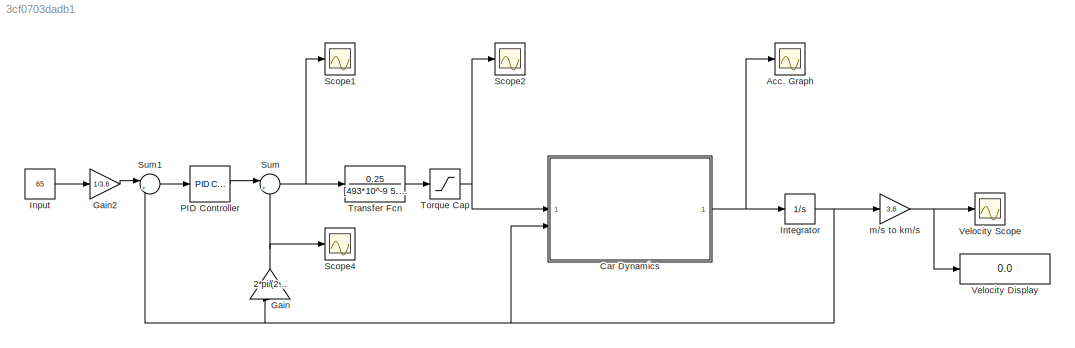
MODEL slx_3cf0703dadb1
KIND model
CONFIG AbsTol = auto
CONFIG EnableMultiTasking = off
CONFIG FixedStep = auto
CONFIG MaxStep = auto
CONFIG MinStep = auto
CONFIG RelTol = 1e-3
CONFIG SampleTimeConstraint = Unconstrained
CONFIG SolverName = VariableStepAuto
CONFIG StartTime = 0.0
CONFIG StopTime = 100.0
BLOCK [Scope] Acc. Graph
  Floating = off
  NumInputPorts = 1
  ScopeSpecificationString = Simulink.scopes.TimeScopeBlockCfg('CurrentConfiguration', extmgr.ConfigurationSet(extmgr.Configuration('Core','General UI',true),extmgr.Configuration('Core','Source UI',true),extmgr.Configuration('Sources','WiredSimulink',true,'DataLoggingVariableName','ScopeData3'),extmgr.Configuration('Visuals','Time Domain',true,'SerializedDisplays',{struct('MinYLimReal','-1.12038','MaxYLimReal','7.59181','YLab...<+1371ch>
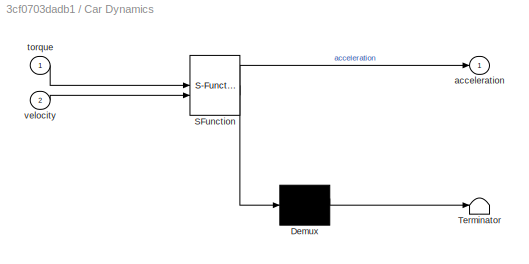
BLOCK [SubSystem] Car Dynamics
  ErrorFcn = Stateflow.Translate.translate
  LibrarySourceBlock = simulink/User-Defined\nFunctions/MATLAB Function
  PermitHierarchicalResolution = ExplicitOnly
  SFBlockType = MATLAB Function
  TreatAsAtomicUnit = on
BLOCK [Demux] Car Dynamics/ Demux 
  Outputs = 1
BLOCK [S-Function] Car Dynamics/ SFunction 
  EnableBusSupport = on
  FunctionName = sf_sfun
  PortCounts = [2 2]
  SFcnIsStateOwnerBlock = off
  SFunctionDeploymentMode = off
  Tag = Stateflow S-Function 2
BLOCK [Terminator] Car Dynamics/ Terminator 
BLOCK [Outport] Car Dynamics/acceleration
BLOCK [Inport] Car Dynamics/torque
BLOCK [Inport] Car Dynamics/velocity
  Port = 2
BLOCK [Gain] Gain
  Gain = 2*pi/(2*pi*0.24)*9.73*0.12
  NameLocation = right
BLOCK [Gain] Gain2
  Gain = 1/3.6
BLOCK [Constant] Input
  Value = 65
BLOCK [Integrator] Integrator
BLOCK [Reference] PID Controller  REF=slpidlib/PID Controller
  LibrarySourceBlock = simulink/Continuous/PID Controller
  SourceBlock = slpidlib/PID Controller
  SourceType = PID 1dof
BLOCK [Scope] Scope1
  Floating = off
  NumInputPorts = 1
  ScopeSpecificationString = Simulink.scopes.TimeScopeBlockCfg('CurrentConfiguration', extmgr.ConfigurationSet(extmgr.Configuration('Core','General UI',true),extmgr.Configuration('Core','Source UI',true),extmgr.Configuration('Sources','WiredSimulink',true,'DataLoggingVariableName','ScopeData1'),extmgr.Configuration('Visuals','Time Domain',true,'SerializedDisplays',{struct('MinYLimReal','-23108.66822','MaxYLimReal','205191.086...<+1396ch>
BLOCK [Scope] Scope2
  Floating = off
  NumInputPorts = 1
  ScopeSpecificationString = Simulink.scopes.TimeScopeBlockCfg('CurrentConfiguration', extmgr.ConfigurationSet(extmgr.Configuration('Core','General UI',true),extmgr.Configuration('Core','Source UI',true),extmgr.Configuration('Sources','WiredSimulink',true,'DataLoggingVariableName','ScopeData2'),extmgr.Configuration('Visuals','Time Domain',true,'SerializedDisplays',{struct('MinYLimReal','-75.00000','MaxYLimReal','675.00000','Y...<+1379ch>
BLOCK [Scope] Scope4
  Floating = off
  NumInputPorts = 1
  ScopeSpecificationString = Simulink.scopes.TimeScopeBlockCfg('CurrentConfiguration', extmgr.ConfigurationSet(extmgr.Configuration('Core','General UI',true),extmgr.Configuration('Core','Source UI',true),extmgr.Configuration('Sources','WiredSimulink',true,'DataLoggingVariableName','ScopeData4'),extmgr.Configuration('Visuals','Time Domain',true,'SerializedDisplays',{struct('MinYLimReal','-11.18485','MaxYLimReal','100.66365','Y...<+1373ch>
BLOCK [Sum] Sum
  Inputs = |+-
BLOCK [Sum] Sum1
  Inputs = |+-
BLOCK [Saturate] Torque Cap
  LowerLimit = 0
  UpperLimit = 600
BLOCK [TransferFcn] Transfer Fcn
  Denominator = [493*10^-9 5.3*10^-3]
  Numerator = 0.25
BLOCK [Display] Velocity Display
  Decimation = 1
BLOCK [Scope] Velocity Scope
  Floating = off
  NumInputPorts = 1
  ScopeSpecificationString = Simulink.scopes.TimeScopeBlockCfg('CurrentConfiguration', extmgr.ConfigurationSet(extmgr.Configuration('Core','General UI',true,'FigureColor',[1 0.968627450980392 0.92156862745098]),extmgr.Configuration('Core','Source UI',true),extmgr.Configuration('Sources','WiredSimulink',true),extmgr.Configuration('Visuals','Time Domain',true,'SerializedDisplays',{struct('MinYLimReal','-8.29939','MaxYLimReal','...<+1581ch>
BLOCK [Gain] m//s to km//s
  Gain = 3.6
NET Car Dynamics:1 -> Acc. Graph:1, Integrator:1
LINE Gain2:1 -> Sum1:1
NET Gain:1 -> Scope4:1, Sum:2
LINE Input:1 -> Gain2:1
NET Integrator:1 -> Car Dynamics:2, Gain:1, Sum1:2, m//s to km//s:1
LINE PID Controller:1 -> Sum:1
LINE Sum1:1 -> PID Controller:1
NET Sum:1 -> Scope1:1, Transfer Fcn:1
NET Torque Cap:1 -> Car Dynamics:1, Scope2:1
LINE Transfer Fcn:1 -> Torque Cap:1
NET m//s to km//s:1 -> Velocity Display:1, Velocity Scope:1
note: NET lines group one-source signal fan-out (src -> all destinations, sorted); 1:1 wires keep LINE
CHART Car Dynamics states=1 transitions=1
  STATE_LABEL 'eML_blk_kernel()'
  STATE_LABEL 'SCRIPT:\nfunction acceleration = fcn(torque, velocity)\n\nacceleration = (0.6 * 40.5 * torque - 413 - 0.3318 * velocity^2) / 2108;\n\n'
CHART  states=0 transitions=0
